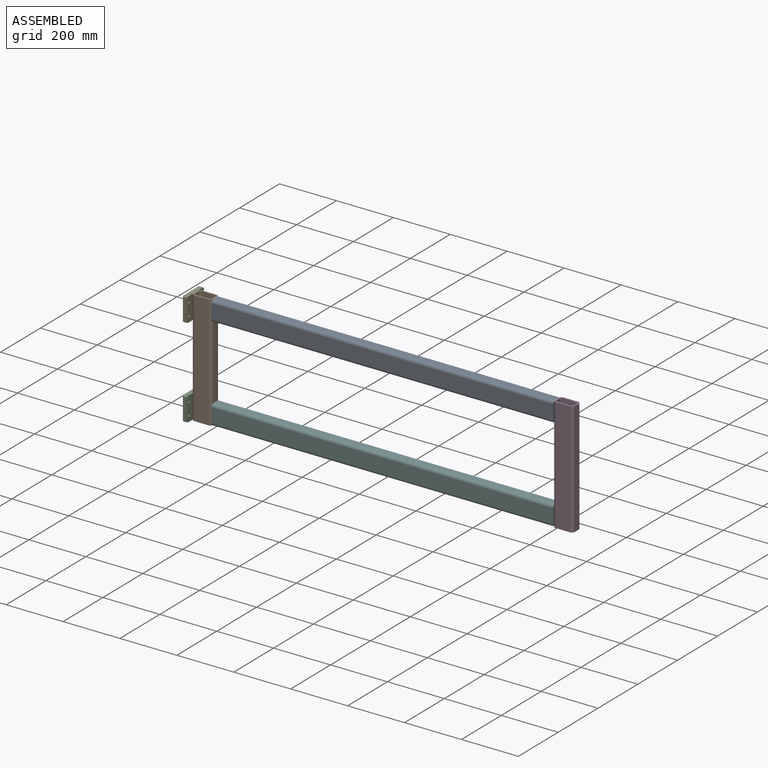
[diagram: assembled view]
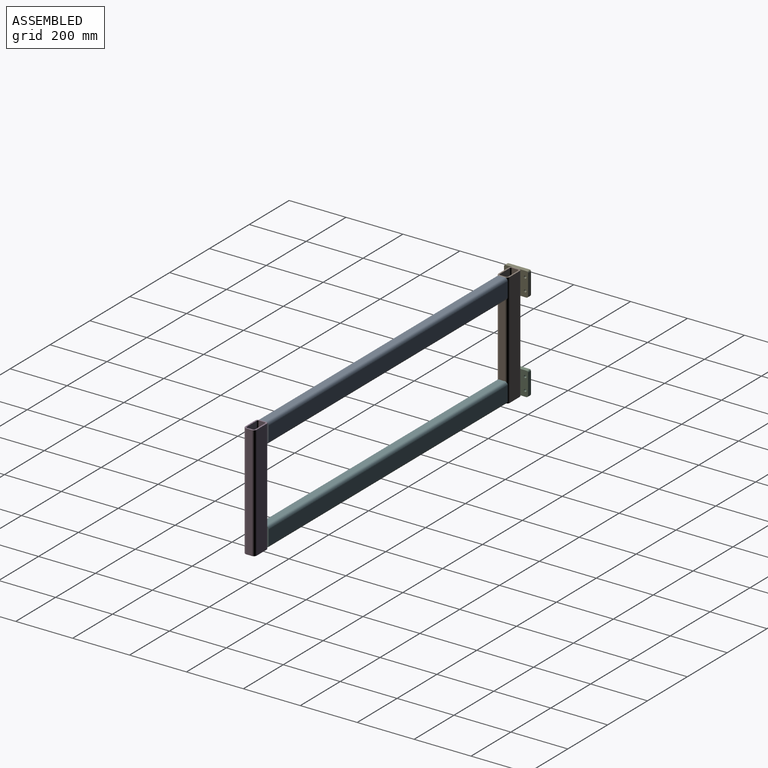
[diagram: assembled view, second angle]
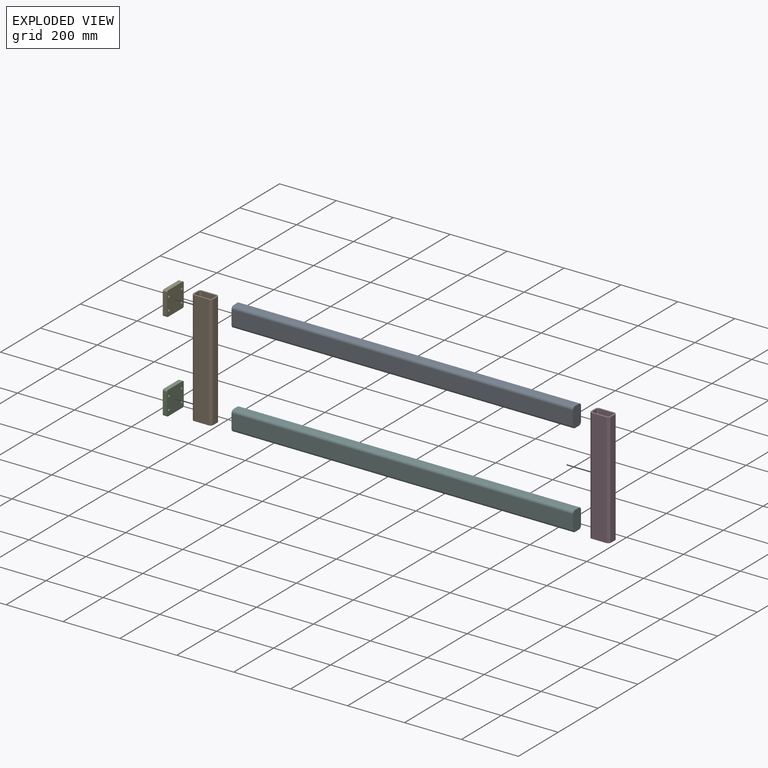
[diagram: exploded view]
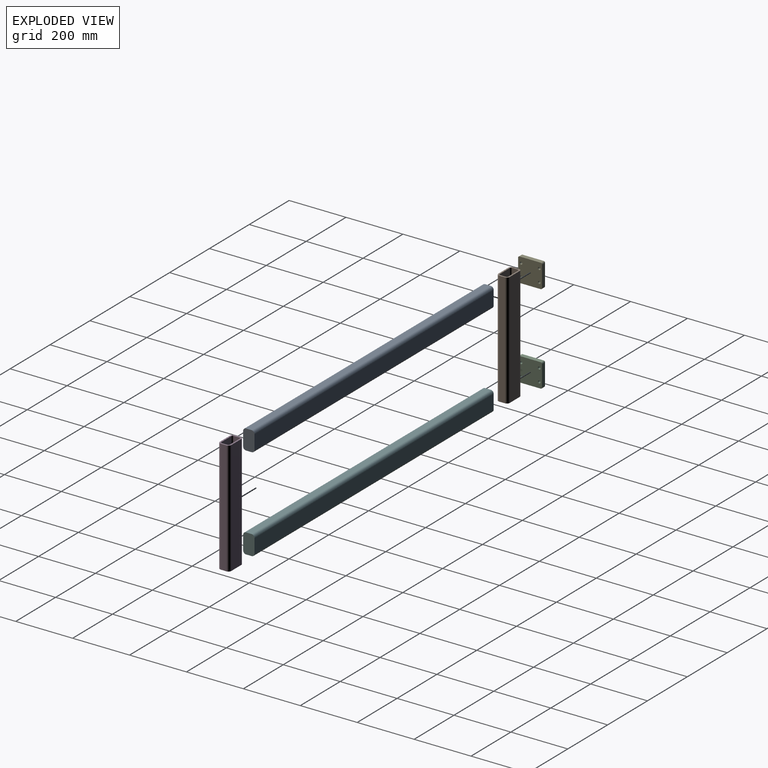
[diagram: exploded view, second angle]
ASSEMBLY  parts=6 mates=5
PART A: 20 faces, bbox 40x70x1200 mm
  f0: plane 70x40mm, normal (0,0,-1), area 2714.2mm2, adj f2,f3,f4,f5,f6,f7,f8,f9
  f1: plane 70x40mm, normal (0,0,1), area 2714.2mm2, adj f2,f3,f4,f5,f6,f7,f8,f9
  f2: plane 1200x20mm, normal (0,1,0), area 24000mm2, adj f0,f1,f3,f9
  f3: cylinder r=10mm len=1200mm, axis (0,0,-1), area 18849.6mm2, adj f0,f1,f2,f4
  f4: plane 1200x50mm, normal (-1,0,0), area 60000mm2, adj f0,f1,f3,f5
  f5: cylinder r=10mm len=1200mm, axis (0,0,-1), area 18849.6mm2, adj f0,f1,f4,f6
  f6: plane 1200x20mm, normal (0,-1,0), area 24000mm2, adj f0,f1,f5,f7
  f7: cylinder r=10mm len=1200mm, axis (0,0,-1), area 18849.6mm2, adj f0,f1,f6,f8
  f8: plane 1200x50mm, normal (1,0,0), area 60000mm2, adj f0,f1,f7,f9
  f9: cylinder r=10mm len=1200mm, axis (0,0,-1), area 18849.6mm2, adj f0,f1,f2,f8
  f10: cylinder r=5mm len=1180mm, axis (0,0,-1), area 9267.7mm2, adj f11,f17,f18,f19
  f11: plane 1180x50mm, normal (1,0,0), area 59000mm2, adj f10,f12,f18,f19
  f12: cylinder r=5mm len=1180mm, axis (0,0,-1), area 9267.7mm2, adj f11,f13,f18,f19
  f13: plane 1180x20mm, normal (0,1,0), area 23600mm2, adj f12,f14,f18,f19
  f14: cylinder r=5mm len=1180mm, axis (0,0,-1), area 9267.7mm2, adj f13,f15,f18,f19
  f15: plane 1180x50mm, normal (-1,0,0), area 59000mm2, adj f14,f16,f18,f19
  f16: cylinder r=5mm len=1180mm, axis (0,0,-1), area 9267.7mm2, adj f15,f17,f18,f19
  f17: plane 1180x20mm, normal (0,-1,0), area 23600mm2, adj f10,f16,f18,f19
  f18: plane 60x30mm, normal (0,0,-1), area 1778.5mm2, adj f10,f11,f12,f13,f14,f15,f16,f17
  f19: plane 60x30mm, normal (0,0,1), area 1778.5mm2, adj f10,f11,f12,f13,f14,f15,f16,f17
PART B: 18 faces, bbox 40x70x400 mm
  f0: plane 400x20mm, normal (0,1,0), area 8000mm2, adj f8,f9,f16,f17
  f1: plane 400x50mm, normal (-1,0,0), area 20000mm2, adj f9,f10,f16,f17
  f2: plane 400x20mm, normal (0,-1,0), area 8000mm2, adj f10,f11,f16,f17
  f3: plane 400x50mm, normal (1,0,0), area 20000mm2, adj f8,f11,f16,f17
  f4: plane 400x50mm, normal (1,0,0), area 20000mm2, adj f12,f13,f16,f17
  f5: plane 400x20mm, normal (0,1,0), area 8000mm2, adj f13,f14,f16,f17
  f6: plane 400x50mm, normal (-1,0,0), area 20000mm2, adj f14,f15,f16,f17
  f7: plane 400x20mm, normal (0,-1,0), area 8000mm2, adj f12,f15,f16,f17
  f8: cylinder r=10mm len=400mm, axis (0,0,-1), area 6283.2mm2, adj f0,f3,f16,f17
  f9: cylinder r=10mm len=400mm, axis (0,0,-1), area 6283.2mm2, adj f0,f1,f16,f17
  f10: cylinder r=10mm len=400mm, axis (0,0,-1), area 6283.2mm2, adj f1,f2,f16,f17
  f11: cylinder r=10mm len=400mm, axis (0,0,-1), area 6283.2mm2, adj f2,f3,f16,f17
  f12: cylinder r=5mm len=400mm, axis (0,0,-1), area 3141.6mm2, adj f4,f7,f16,f17
  f13: cylinder r=5mm len=400mm, axis (0,0,-1), area 3141.6mm2, adj f4,f5,f16,f17
  f14: cylinder r=5mm len=400mm, axis (0,0,-1), area 3141.6mm2, adj f5,f6,f16,f17
  f15: cylinder r=5mm len=400mm, axis (0,0,-1), area 3141.6mm2, adj f6,f7,f16,f17
  f16: plane 70x40mm, normal (0,0,-1), area 935.6mm2, adj f0,f1,f2,f3,f4,f5,f6,f7
  f17: plane 70x40mm, normal (0,0,1), area 935.6mm2, adj f0,f1,f2,f3,f4,f5,f6,f7
PART C: 14 faces, bbox 84x15x84 mm
  f0: plane 74x15mm, normal (0,0,1), area 1110mm2, adj f4,f5,f6,f9
  f1: plane 74x15mm, normal (-1,0,0), area 1110mm2, adj f4,f5,f6,f7
  f2: plane 74x15mm, normal (0,0,-1), area 1110mm2, adj f4,f5,f7,f8
  f3: plane 74x15mm, normal (1,0,0), area 1110mm2, adj f4,f5,f8,f9
  f4: plane 84x84mm, normal (0,-1,0), area 6780.1mm2, adj f0,f1,f2,f3,f6,f7,f8,f9
  f5: plane 84x84mm, normal (0,1,0), area 6780.1mm2, adj f0,f1,f2,f3,f6,f7,f8,f9
  f6: cylinder r=5mm len=15mm, axis (0,-1,0), area 117.8mm2, adj f0,f1,f4,f5
  f7: cylinder r=5mm len=15mm, axis (0,1,0), area 117.8mm2, adj f1,f2,f4,f5
  f8: cylinder r=5mm len=15mm, axis (0,-1,0), area 117.8mm2, adj f2,f3,f4,f5
  f9: cylinder r=5mm len=15mm, axis (0,1,0), area 117.8mm2, adj f0,f3,f4,f5
  f10: cylinder r=4.5mm len=15mm, axis (0,-1,0), area 424.1mm2, adj f4,f5
  f11: cylinder r=4.5mm len=15mm, axis (0,-1,0), area 424.1mm2, adj f4,f5
  f12: cylinder r=4.5mm len=15mm, axis (0,-1,0), area 424.1mm2, adj f4,f5
  f13: cylinder r=4.5mm len=15mm, axis (0,-1,0), area 424.1mm2, adj f4,f5
PART D: same geometry as B
PART E: same geometry as C
PART F: same geometry as A
PLACE A rot(axis=(0.58,-0.58,-0.58),120deg) t=(2485.36,-1462.3,721.62)mm
PLACE B rot(axis=(0,0,1),90deg) t=(-387.18,-1502.3,805.88)mm
PLACE C rot(axis=(0,0,1),90deg) t=(-464.68,-1582.3,433.62)mm
PLACE D rot(axis=(0,0,-1),90deg) t=(812.82,-1462.3,805.88)mm
PLACE E rot(axis=(0,0,1),90deg) t=(-464.68,-1582.3,749.62)mm
PLACE F rot(axis=(-0.58,-0.58,0.58),120deg) t=(2485.36,-1502.3,461.62)mm
MATE fastened C.f4 <-> B.f0  axis (1,0,0) through (-457.18,-1482.3,433.62)mm
MATE fastened F.f1 <-> B.f2  axis (-1,0,0) through (-387.18,-1482.3,391.62)mm
MATE fastened E.f4 <-> B.f0  axis (1,0,0) through (-457.18,-1482.3,749.62)mm
MATE fastened D.f2 <-> A.f0  axis (-1,0,0) through (812.82,-1482.3,791.62)mm
MATE fastened B.f2 <-> A.f1  axis (1,0,0) through (-387.18,-1482.3,791.62)mm
